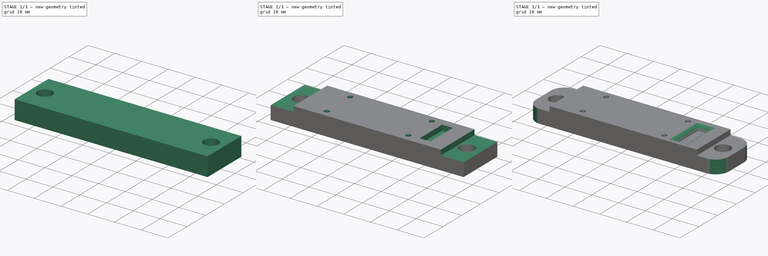
[diagram: build sequence overview — one tinted view per stage of 3, left to right]
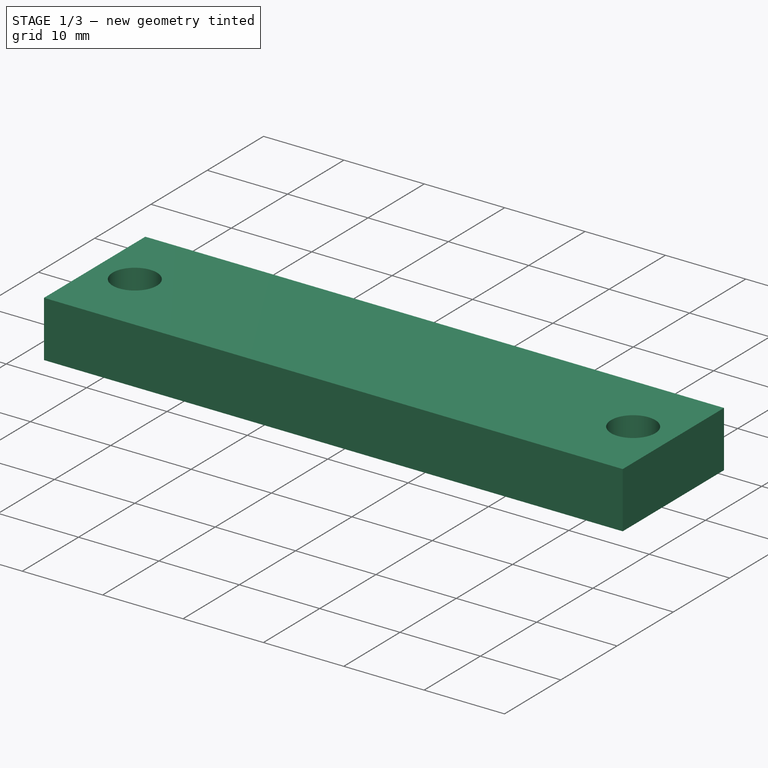
[diagram: stage 1 of 3 — iso view after this stage's code; geometry added in this stage tinted green]
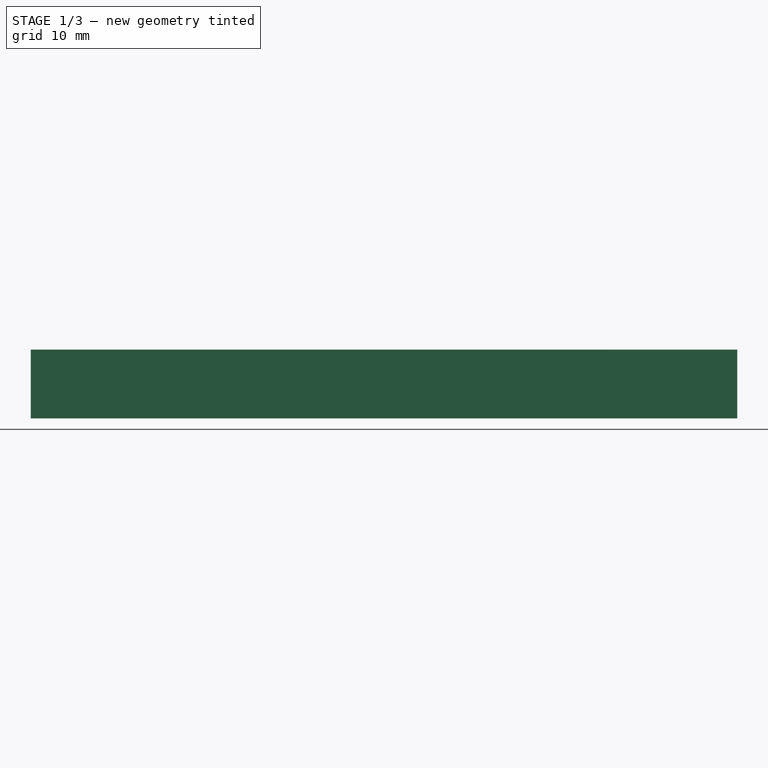
[diagram: stage 1 of 3 — front view after this stage's code; geometry added in this stage tinted green]
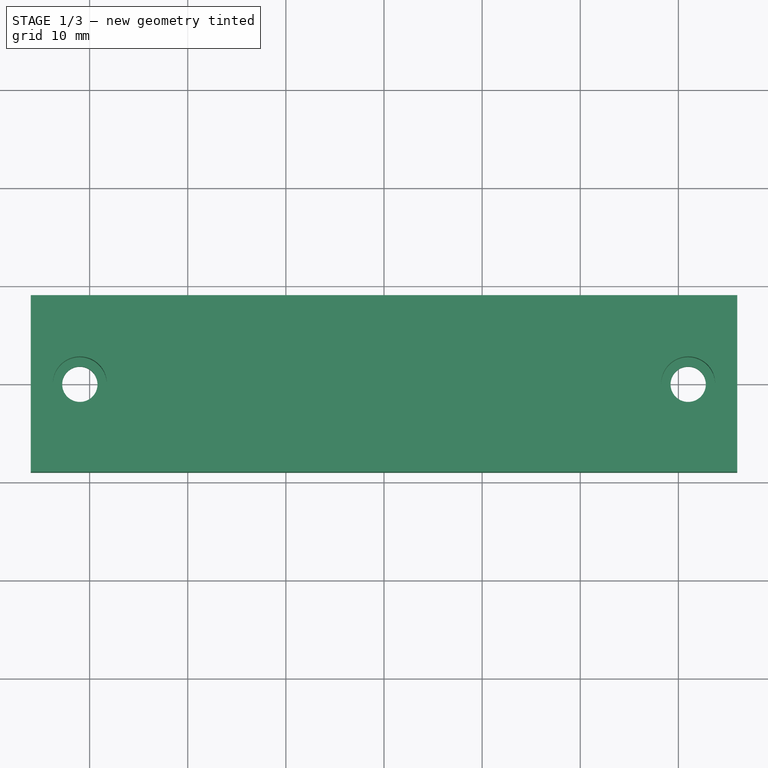
[diagram: stage 1 of 3 — top view after this stage's code; geometry added in this stage tinted green]
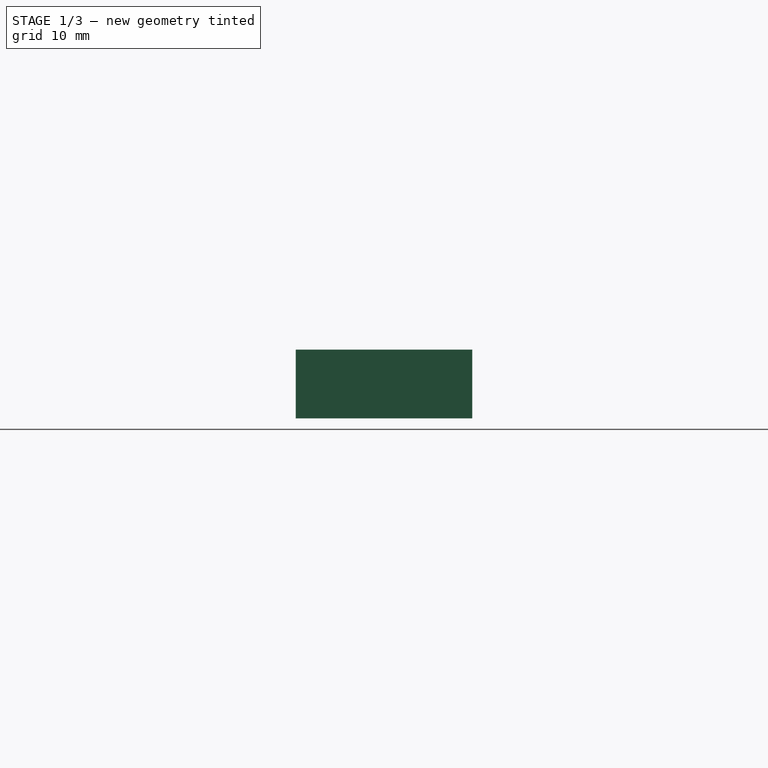
[diagram: stage 1 of 3 — right view after this stage's code; geometry added in this stage tinted green]
FCSTD DOCUMENT  (FreeCAD 1.0R39319 (Git))
Label: UCAN-Mount
License: All rights reserved
LicenseURL: https://en.wikipedia.org/wiki/All_rights_reserved
objects: Sketcher::SketchObject×4, PartDesign::Pocket×3, PartDesign::Fillet×2, App::VarSet×1, PartDesign::Pad×1, PartDesign::Body×1
note: 27 computed .brp shape members not serialized (recipe doc carries the construction recipe); baked Part::Feature solids carry a one-line shape summary decoded from their .brp

FEATURE [App::VarSet] VarSet
  ClipRecess = 2
  ClipScrewDistance = 62
  DX = 72
  DY = 18
  FromUsbEdge = 10.5
  HoleDX = 30.5
  HoleDY = 12.5
  HoleDiameter = 3
  M3HeadDiameter = 5.5
  M3HeadHeight = 3
  M3PassThroughDiameter = 3.6
  MiniBlackSelfTappingDiameter = 1.9
  PcbDX = 55
  PcbDY = 16
FEATURE [Sketcher::SketchObject] Sketch
  ArcFitTolerance = 1e-06
  AttachmentSupport = -> [XY_Plane]
  FullyConstrained = true
  MakeInternals = false
  MapMode = 5
  expr: Constraints[10] = VarSet.DY
  expr: Constraints[13] = VarSet.M3PassThroughDiameter
  expr: Constraints[15] = VarSet.ClipScrewDistance
  expr: Constraints[9] = VarSet.DX
  sketch-geometry (6):
    g0: LineSegment StartX=-36 StartY=9 StartZ=0 EndX=-36 EndY=-9 EndZ=0
    g1: LineSegment StartX=-36 StartY=-9 StartZ=0 EndX=36 EndY=-9 EndZ=0
    g2: LineSegment StartX=36 StartY=-9 StartZ=0 EndX=36 EndY=9 EndZ=0
    g3: LineSegment StartX=36 StartY=9 StartZ=0 EndX=-36 EndY=9 EndZ=0
    g4: Circle CenterX=-31 CenterY=0 CenterZ=0 NormalX=0 NormalY=0 NormalZ=1 AngleXU=0 Radius=1.8
    g5: Circle CenterX=31 CenterY=0 CenterZ=0 NormalX=0 NormalY=0 NormalZ=1 AngleXU=0 Radius=1.8
  constraints (16):
    c: Coincident(g0,g1)
    c: Coincident(g1,g2)
    c: Coincident(g2,g3)
    c: Coincident(g3,g0)
    c: Vertical(g0)
    c: Vertical(g2)
    c: Horizontal(g1)
    c: Horizontal(g3)
    c: Symmetric(g1,g0,g-1)
    c: Distance(g3) = 72
    c: Distance(g2) = 18
    c: Symmetric(g5,g4,g-1)
    c: Equal(g5,g4)
    c: Diameter(g5) = 3.6
    c: PointOnObject(g4,g-1)
    c: Distance(g4,g5) = 62
FEATURE [PartDesign::Pad] Pad  label="Main Body"
  Direction = (0,0,1)
  Length = 7
  Length2 = 10
  Profile = -> Sketch
  ReferenceAxis = -> Sketch [N_Axis]
  Refine = true
  Suppressed = false
  Type = 0
FEATURE [Sketcher::SketchObject] Sketch001
  ArcFitTolerance = 1e-06
  AttachmentSupport = -> [Pad]
  ExternalGeometry = -> [Pad]
  FullyConstrained = true
  MakeInternals = false
  MapMode = 5
  Placement = pos=(0,0,7) rot=(0,0,1;0rad)
  expr: Constraints[3] = VarSet.M3HeadDiameter
  sketch-geometry (2):
    g0: Circle CenterX=-31 CenterY=0 CenterZ=0 NormalX=0 NormalY=0 NormalZ=1 AngleXU=0 Radius=2.75
    g1: Circle CenterX=31 CenterY=0 CenterZ=0 NormalX=0 NormalY=0 NormalZ=1 AngleXU=0 Radius=2.75
  constraints (4):
    c: Coincident(g0,g-4)
    c: Coincident(g1,g-3)
    c: Equal(g1,g0)
    c: Diameter(g1) = 5.5
FEATURE [PartDesign::Pocket] Pocket  label="Clip Screw Heads"
  BaseFeature = -> Pad
  Direction = (0,0,-1)
  Length = 5
  Length2 = 5
  Profile = -> Sketch001
  ReferenceAxis = -> Sketch001 [N_Axis]
  Refine = true
  Suppressed = false
  Type = 0
  expr: Length = VarSet.M3HeadHeight + VarSet.ClipRecess
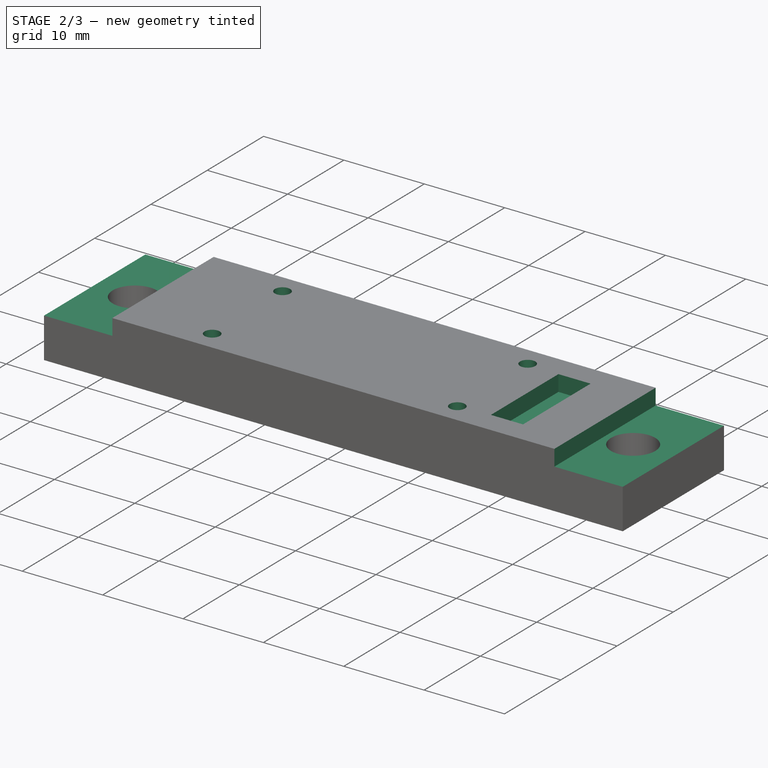
[diagram: stage 2 of 3 — iso view after this stage's code; geometry added in this stage tinted green]
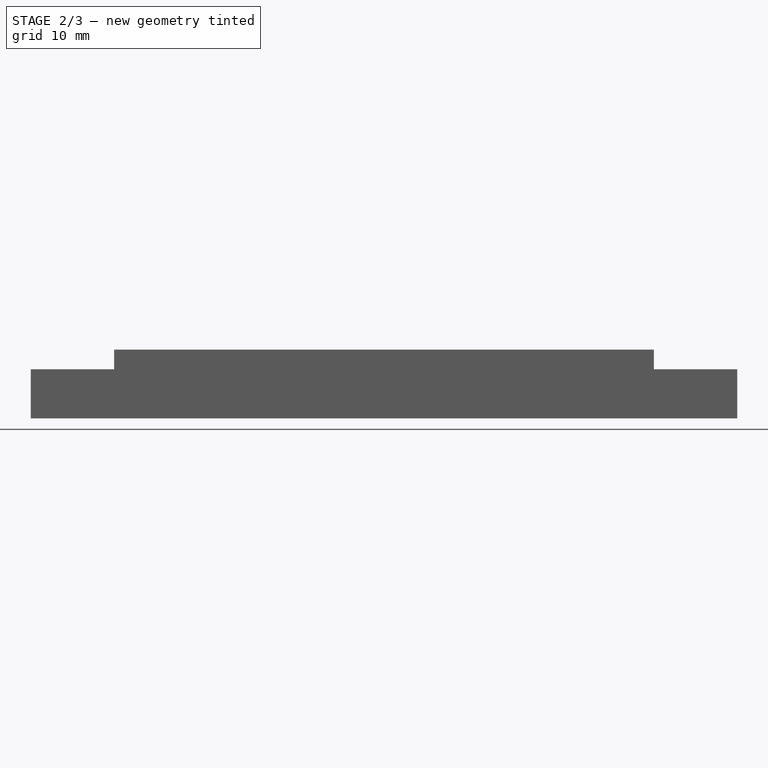
[diagram: stage 2 of 3 — front view after this stage's code; geometry added in this stage tinted green]
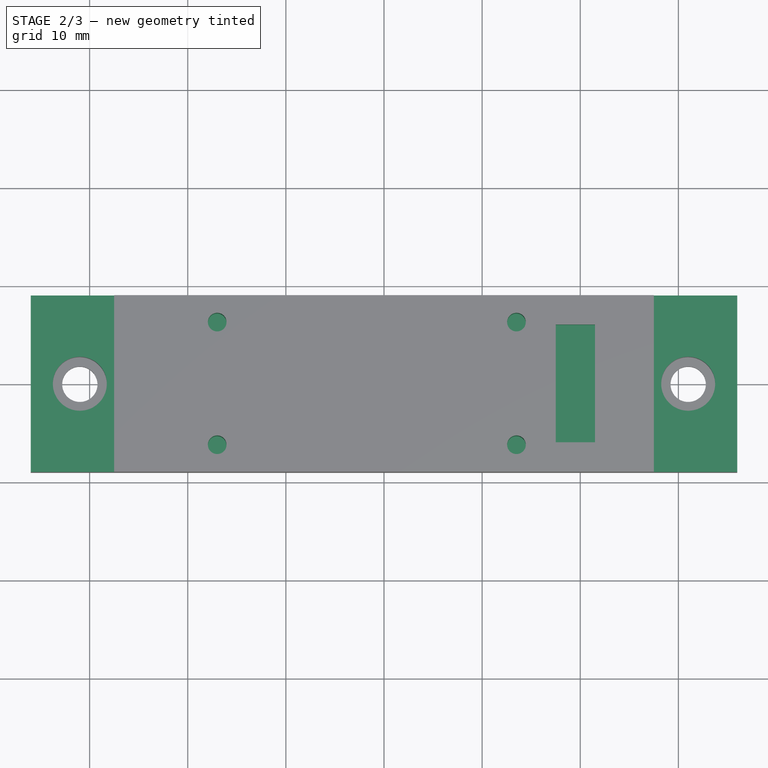
[diagram: stage 2 of 3 — top view after this stage's code; geometry added in this stage tinted green]
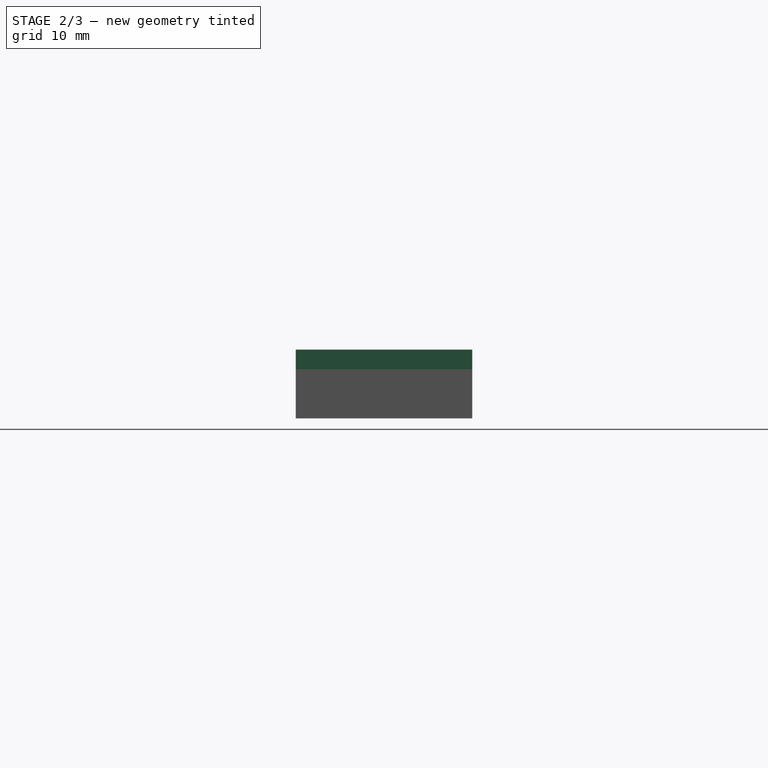
[diagram: stage 2 of 3 — right view after this stage's code; geometry added in this stage tinted green]
FEATURE [Sketcher::SketchObject] Sketch002
  ArcFitTolerance = 1e-06
  AttachmentSupport = -> [Pocket]
  ExternalGeometry = -> [Pocket]
  FullyConstrained = true
  MakeInternals = false
  MapMode = 5
  Placement = pos=(0,0,7) rot=(0,0,1;0rad)
  expr: Constraints[10] = VarSet.PcbDX
  sketch-geometry (15):
    g0: LineSegment StartX=-27.5 StartY=9 StartZ=0 EndX=-27.5 EndY=-9 EndZ=0
    g1: LineSegment [constr] StartX=-27.5 StartY=-9 StartZ=0 EndX=27.5 EndY=-9 EndZ=0
    g2: LineSegment StartX=27.5 StartY=-9 StartZ=0 EndX=27.5 EndY=9 EndZ=0
    g3: LineSegment [constr] StartX=27.5 StartY=9 StartZ=0 EndX=-27.5 EndY=9 EndZ=0
    g4: LineSegment StartX=-27.5 StartY=9 StartZ=0 EndX=-36 EndY=9 EndZ=0
    g5: LineSegment StartX=-27.5 StartY=-9 StartZ=0 EndX=-36 EndY=-9 EndZ=0
    g6: LineSegment StartX=-36 StartY=-9 StartZ=0 EndX=-36 EndY=9 EndZ=0
    g7: LineSegment StartX=27.5 StartY=-9 StartZ=0 EndX=36 EndY=-9 EndZ=0
    g8: LineSegment StartX=27.5 StartY=9 StartZ=0 EndX=36 EndY=9 EndZ=0
    g9: LineSegment StartX=36 StartY=9 StartZ=0 EndX=36 EndY=-9 EndZ=0
    g10: LineSegment [constr] StartX=27.5 StartY=6 StartZ=0 EndX=21.5 EndY=6 EndZ=0
    g11: LineSegment StartX=21.5 StartY=6 StartZ=0 EndX=17.5 EndY=6 EndZ=0
    g12: LineSegment StartX=17.5 StartY=6 StartZ=0 EndX=17.5 EndY=-6 EndZ=0
    g13: LineSegment StartX=17.5 StartY=-6 StartZ=0 EndX=21.5 EndY=-6 EndZ=0
    g14: LineSegment StartX=21.5 StartY=-6 StartZ=0 EndX=21.5 EndY=6 EndZ=0
  constraints (37):
    c: Coincident(g0,g1)
    c: Coincident(g1,g2)
    c: Coincident(g2,g3)
    c: Coincident(g3,g0)
    c: Vertical(g0)
    c: Vertical(g2)
    c: Horizontal(g1)
    c: Horizontal(g3)
    c: Equal(g0,g-4)
    c: Symmetric(g1,g0,g-1)
    c: Distance(g3) = 55
    c: Coincident(g4,g0)
    c: Coincident(g4,g-4)
    c: Coincident(g5,g0)
    c: Coincident(g5,g-4)
    c: Coincident(g6,g5)
    c: Coincident(g6,g4)
    c: Coincident(g7,g1)
    c: Coincident(g7,g-3)
    c: Coincident(g8,g2)
    c: Coincident(g8,g-3)
    c: Coincident(g9,g8)
    c: Coincident(g9,g7)
    c: PointOnObject(g10,g2)
    c: Horizontal(g10)
    c: Distance(g10) = 6
    c: Coincident(g11,g12)
    c: Coincident(g12,g13)
    c: Coincident(g13,g14)
    c: Coincident(g14,g11)
    c: Horizontal(g11)
    c: Horizontal(g13)
    c: Vertical(g14)
    c: Coincident(g11,g10)
    c: Distance(g12) = 12
    c: Symmetric(g12,g11,g-1)
    c: Distance(g13) = 4
FEATURE [PartDesign::Pocket] Pocket001  label="Clip Recess"
  BaseFeature = -> Pocket
  Direction = (0,0,-1)
  Length = 2
  Length2 = 5
  Profile = -> Sketch002
  ReferenceAxis = -> Sketch002 [N_Axis]
  Refine = true
  Suppressed = false
  Type = 0
  expr: Length = VarSet.ClipRecess
FEATURE [Sketcher::SketchObject] Sketch003
  ArcFitTolerance = 1e-06
  AttachmentSupport = -> [Pocket001]
  ExternalGeometry = -> [Pocket001]
  FullyConstrained = true
  MakeInternals = false
  MapMode = 5
  Placement = pos=(0,0,7) rot=(0,0,1;0rad)
  expr: Constraints[11] = VarSet.HoleDY
  expr: Constraints[19] = VarSet.FromUsbEdge
  expr: Constraints[3] = VarSet.MiniBlackSelfTappingDiameter
  expr: Constraints[7] = VarSet.HoleDX
  sketch-geometry (8):
    g0: Circle CenterX=-17 CenterY=6.25 CenterZ=0 NormalX=0 NormalY=0 NormalZ=1 AngleXU=0 Radius=0.95
    g1: Circle CenterX=-17 CenterY=-6.25 CenterZ=0 NormalX=0 NormalY=0 NormalZ=1 AngleXU=0 Radius=0.95
    g2: Circle CenterX=13.5 CenterY=6.25 CenterZ=0 NormalX=0 NormalY=0 NormalZ=1 AngleXU=0 Radius=0.95
    g3: Circle CenterX=13.5 CenterY=-6.25 CenterZ=0 NormalX=0 NormalY=0 NormalZ=1 AngleXU=0 Radius=0.95
    g4: LineSegment [constr] StartX=-17 StartY=6.25 StartZ=0 EndX=13.5 EndY=6.25 EndZ=0
    g5: LineSegment [constr] StartX=13.5 StartY=6.25 StartZ=0 EndX=13.5 EndY=-6.25 EndZ=0
    g6: LineSegment [constr] StartX=-17 StartY=6.25 StartZ=0 EndX=-17 EndY=-6.25 EndZ=0
    g7: LineSegment [constr] StartX=-17 StartY=6.25 StartZ=0 EndX=-27.5 EndY=6.25 EndZ=0
  constraints (20):
    c: Equal(g1,g0)
    c: Equal(g0,g2)
    c: Equal(g2,g3)
    c: Diameter(g2) = 1.9
    c: Coincident(g4,g0)
    c: Horizontal(g4)
    c: Coincident(g4,g2)
    c: Distance(g4) = 30.5
    c: Coincident(g5,g2)
    c: Vertical(g5)
    c: Coincident(g3,g5)
    c: Distance(g5) = 12.5
    c: Coincident(g6,g0)
    c: Equal(g5,g6)
    c: Coincident(g1,g6)
    c: Symmetric(g0,g1,g-1)
    c: Coincident(g7,g0)
    c: Horizontal(g7)
    c: PointOnObject(g7,g-3)
    c: Distance(g7) = 10.5
FEATURE [PartDesign::Pocket] Pocket002  label="PCB Holes"
  BaseFeature = -> Pocket001
  Direction = (0,0,-1)
  Length = 5
  Length2 = 5
  Profile = -> Sketch003
  ReferenceAxis = -> Sketch003 [N_Axis]
  Refine = true
  Suppressed = false
  Type = 0
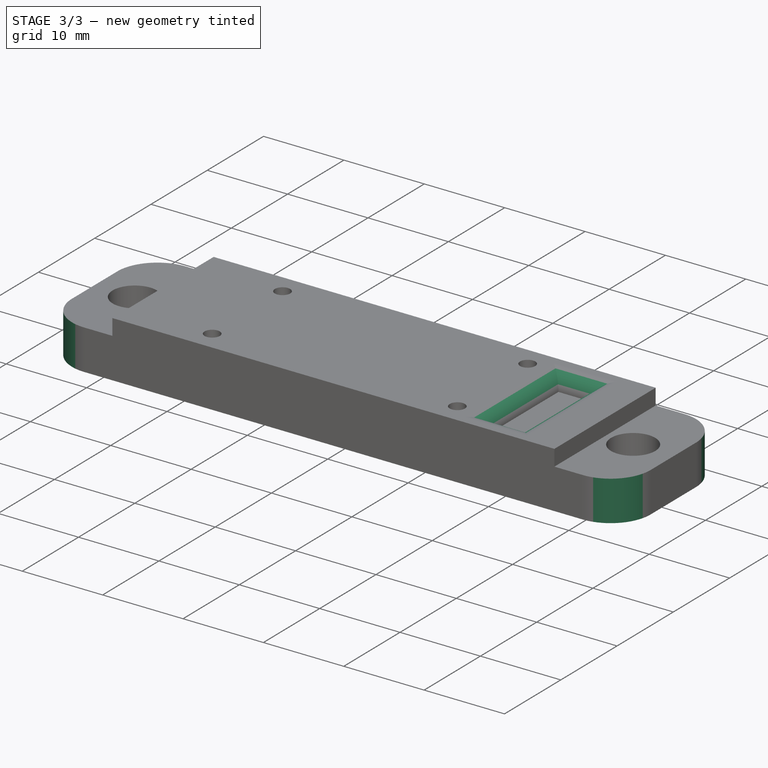
[diagram: stage 3 of 3 — iso view after this stage's code; geometry added in this stage tinted green]
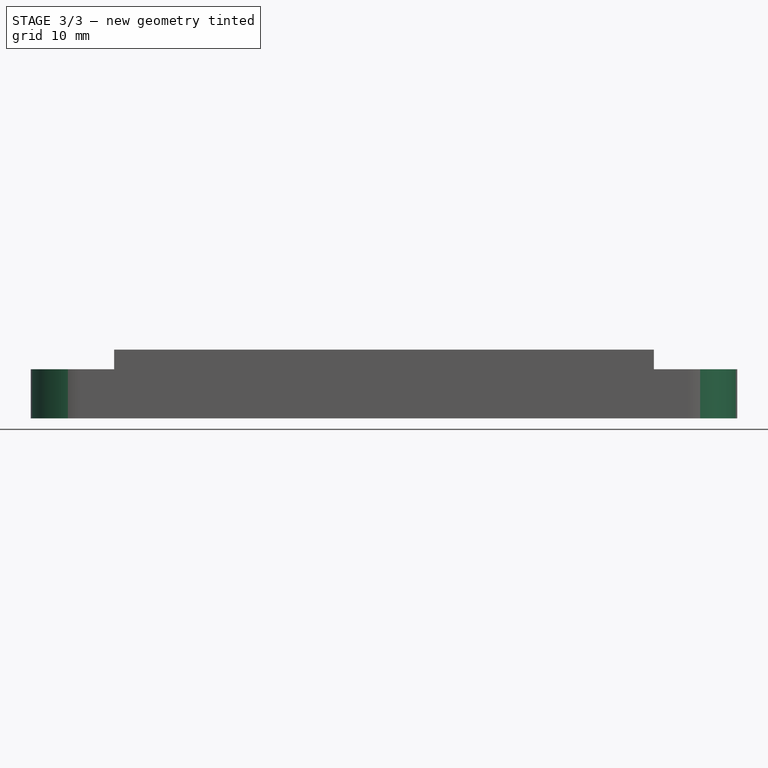
[diagram: stage 3 of 3 — front view after this stage's code; geometry added in this stage tinted green]
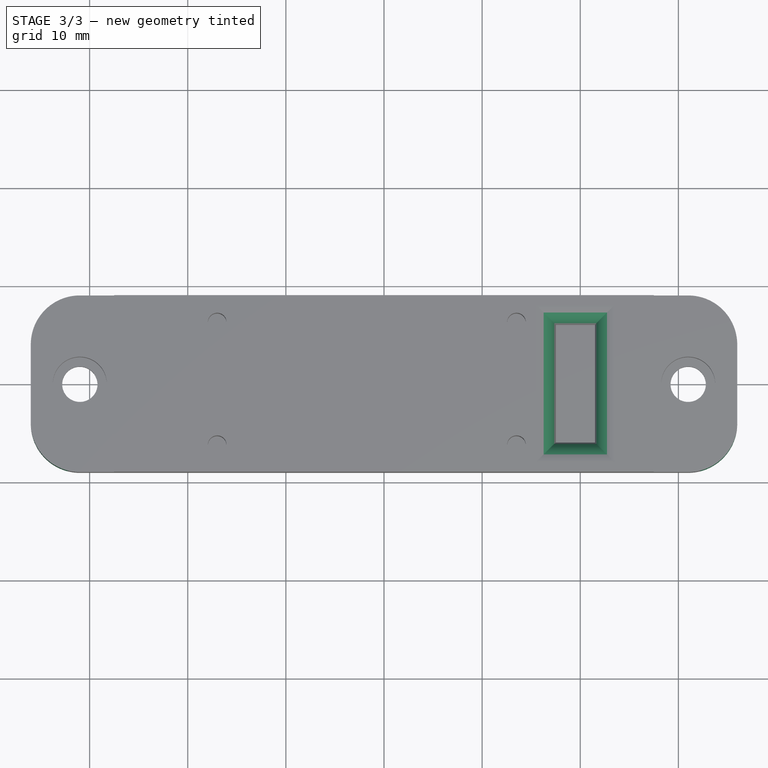
[diagram: stage 3 of 3 — top view after this stage's code; geometry added in this stage tinted green]
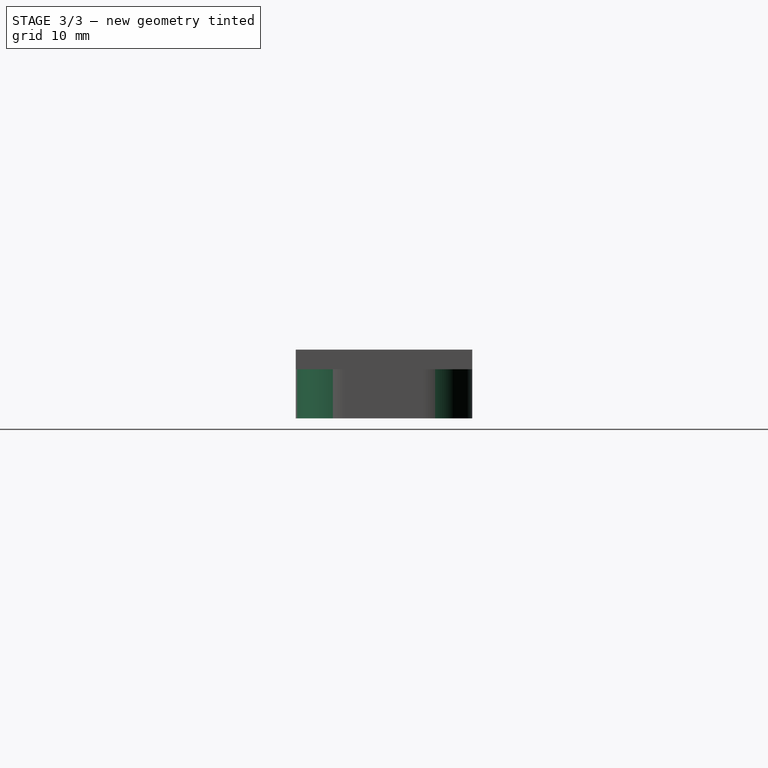
[diagram: stage 3 of 3 — right view after this stage's code; geometry added in this stage tinted green]
FEATURE [PartDesign::Fillet] Fillet  label="Rounding"
  Base = -> Pocket002 [Edge2,Edge4,Edge10,Edge23]
  BaseFeature = -> Pocket002
  Radius = 5
  Refine = true
  SupportTransform = false
  Suppressed = false
  UseAllEdges = false
FEATURE [PartDesign::Fillet] Fillet001  label="PCB Contacts Roundings"
  Base = -> Fillet [Edge50,Edge49,Edge51,Edge52]
  BaseFeature = -> Fillet
  Radius = 1.99
  Refine = true
  SupportTransform = false
  Suppressed = false
  UseAllEdges = false
FEATURE [PartDesign::Body] Body
  AllowCompound = false
  Group = -> [Sketch,Pad,Sketch001,Pocket,Sketch002,Pocket001,Sketch003,Pocket002,Fillet,Fillet001]
  Origin = -> Origin
  Tip = -> Fillet001
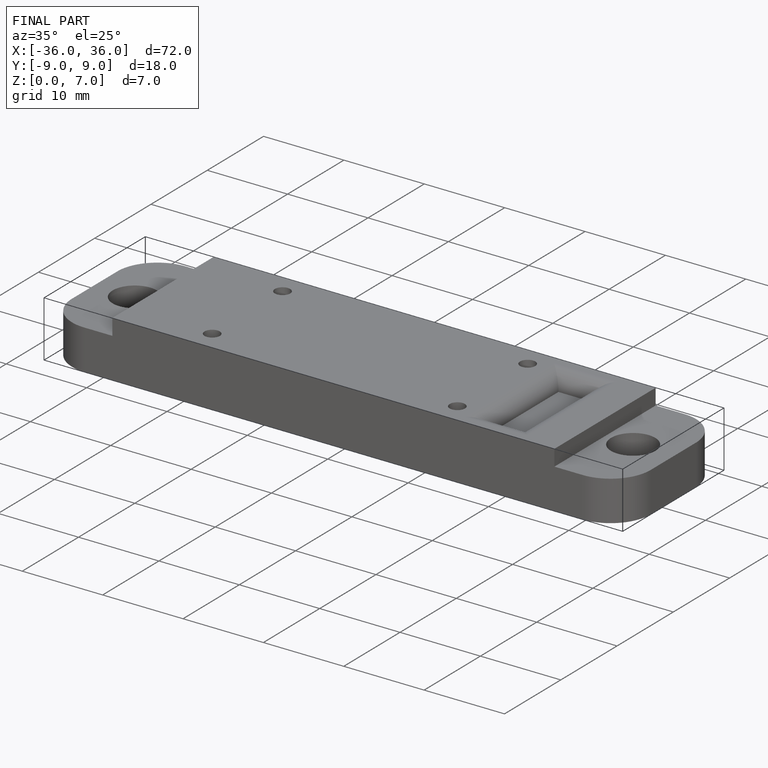
[diagram: finished part — iso view with bounding-box wireframe]
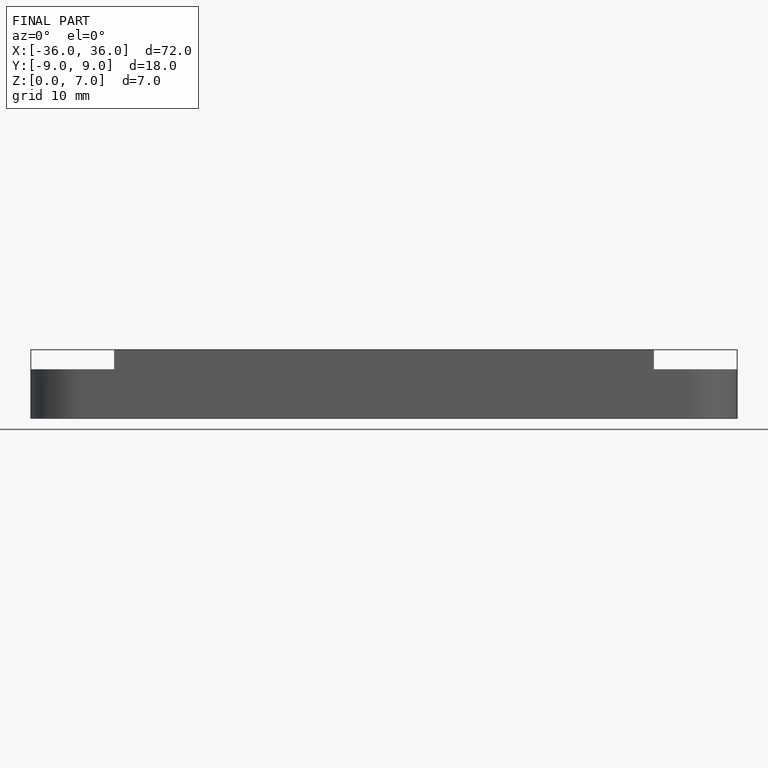
[diagram: finished part — front view with bounding-box wireframe]
